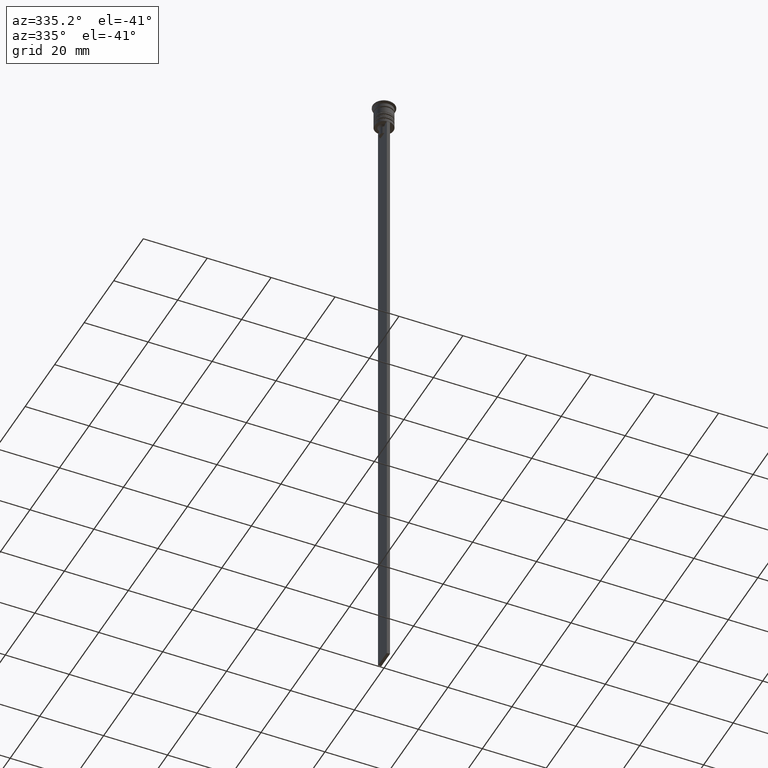
[diagram: clean part render]
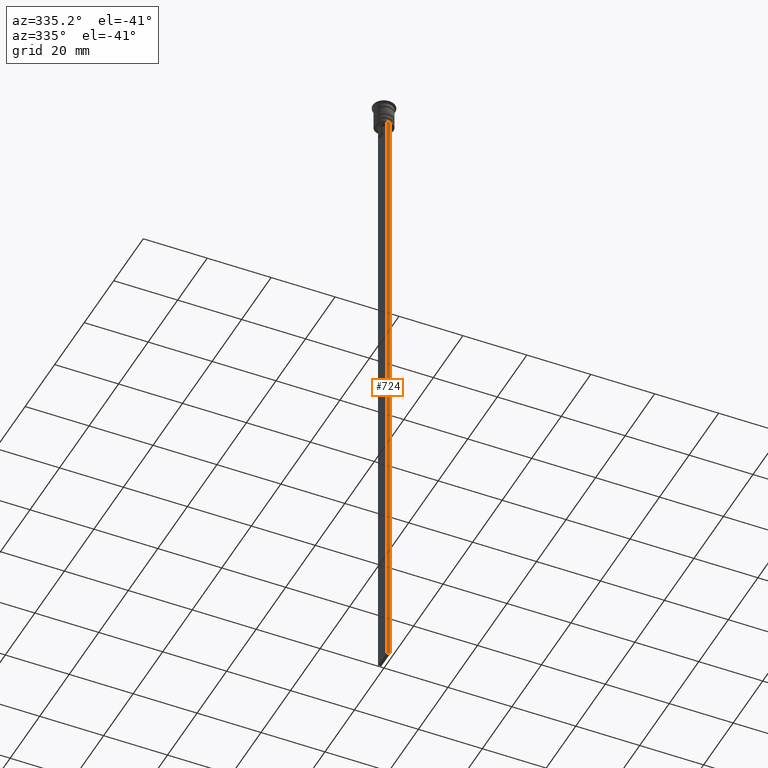
[diagram: same view with one face highlighted and labeled with its STEP entity id]
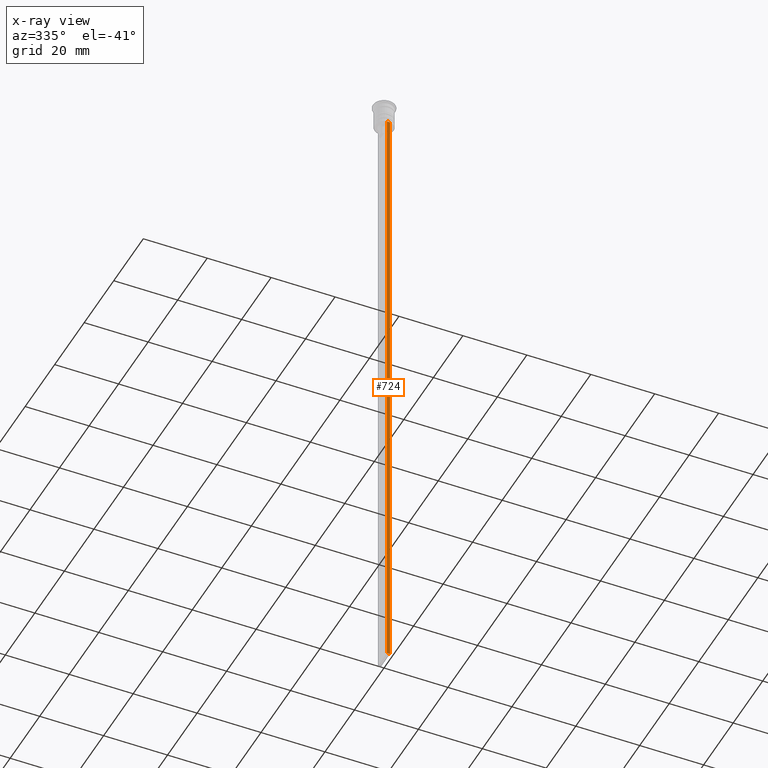
[diagram: x-ray of the same camera — body ghosted, the highlighted face saturated]
A machine part, auxiliary view. The second image highlights one B-rep face of the part: STEP entity #724.
The next image is the same camera in x-ray: the body ghosted, the highlighted face saturated — about 0% of this face is hidden behind the body in this view.
In plain terms, the highlighted planar face has unit normal (0, -1, -0).
Its self-contained STEP definition (entity closure, byte-faithful):
#56 = CARTESIAN_POINT ( 'NONE',  ( 0.4999999999999998890, -3.000000000000000000, -7.500000000000000000 ) ) ;
#179 = CARTESIAN_POINT ( 'NONE',  ( 0.4999999999999998890, -3.000000000000000000, -7.500000000000000000 ) ) ;
#180 = EDGE_CURVE ( 'NONE', #1572, #1091, #2005, .T. ) ;
#196 = CARTESIAN_POINT ( 'NONE',  ( -0.5000000000000001110, -3.000000000000000000, -207.5000000000000284 ) ) ;
#199 = CARTESIAN_POINT ( 'NONE',  ( 0.4999999999999998890, -3.000000000000000000, -1.417237469701779329 ) ) ;
#221 = DIRECTION ( 'NONE',  ( 0.000000000000000000, 0.000000000000000000, -1.000000000000000000 ) ) ;
#314 = DIRECTION ( 'NONE',  ( -1.000000000000000000, 0.000000000000000000, 0.000000000000000000 ) ) ;
#545 = ORIENTED_EDGE ( 'NONE', *, *, #1491, .F. ) ;
#550 = DIRECTION ( 'NONE',  ( 1.000000000000000000, 0.000000000000000000, 0.000000000000000000 ) ) ;
#591 = FACE_OUTER_BOUND ( 'NONE', #1221, .T. ) ;
#597 = CARTESIAN_POINT ( 'NONE',  ( -0.5000000000000001110, -3.000000000000000000, -1.417237469701779329 ) ) ;
#637 = EDGE_CURVE ( 'NONE', #1188, #1091, #697, .T. ) ;
#697 = LINE ( 'NONE', #1208, #1920 ) ;
#724 = ADVANCED_FACE ( 'NONE', ( #591 ), #1657, .T. ) ;
#781 = CARTESIAN_POINT ( 'NONE',  ( -0.5000000000000001110, -3.000000000000000000, -7.500000000000000000 ) ) ;
#948 = EDGE_CURVE ( 'NONE', #1546, #1188, #1560, .T. ) ;
#956 = CARTESIAN_POINT ( 'NONE',  ( 0.4999999999999998890, -3.000000000000000000, -1.417237469701779329 ) ) ;
#1091 = VERTEX_POINT ( 'NONE', #196 ) ;
#1153 = CARTESIAN_POINT ( 'NONE',  ( 0.4999999999999998890, -3.000000000000000000, -207.5000000000000284 ) ) ;
#1188 = VERTEX_POINT ( 'NONE', #1153 ) ;
#1208 = CARTESIAN_POINT ( 'NONE',  ( 0.4999999999999998890, -3.000000000000000000, -207.5000000000000284 ) ) ;
#1212 = AXIS2_PLACEMENT_3D ( 'NONE', #199, #1794, #221 ) ;
#1221 = EDGE_LOOP ( 'NONE', ( #545, #2143, #2231, #2101 ) ) ;
#1241 = LINE ( 'NONE', #179, #1836 ) ;
#1491 = EDGE_CURVE ( 'NONE', #1572, #1546, #1241, .T. ) ;
#1493 = DIRECTION ( 'NONE',  ( 0.000000000000000000, 0.000000000000000000, -1.000000000000000000 ) ) ;
#1546 = VERTEX_POINT ( 'NONE', #56 ) ;
#1560 = LINE ( 'NONE', #956, #2028 ) ;
#1572 = VERTEX_POINT ( 'NONE', #781 ) ;
#1627 = DIRECTION ( 'NONE',  ( 0.000000000000000000, 0.000000000000000000, -1.000000000000000000 ) ) ;
#1657 = PLANE ( 'NONE',  #1212 ) ;
#1685 = VECTOR ( 'NONE', #1627, 1000.000000000000000 ) ;
#1794 = DIRECTION ( 'NONE',  ( 0.000000000000000000, -1.000000000000000000, -0.000000000000000000 ) ) ;
#1836 = VECTOR ( 'NONE', #550, 1000.000000000000000 ) ;
#1920 = VECTOR ( 'NONE', #314, 1000.000000000000000 ) ;
#2005 = LINE ( 'NONE', #597, #1685 ) ;
#2028 = VECTOR ( 'NONE', #1493, 1000.000000000000000 ) ;
#2101 = ORIENTED_EDGE ( 'NONE', *, *, #948, .F. ) ;
#2143 = ORIENTED_EDGE ( 'NONE', *, *, #180, .T. ) ;
#2231 = ORIENTED_EDGE ( 'NONE', *, *, #637, .F. ) ;